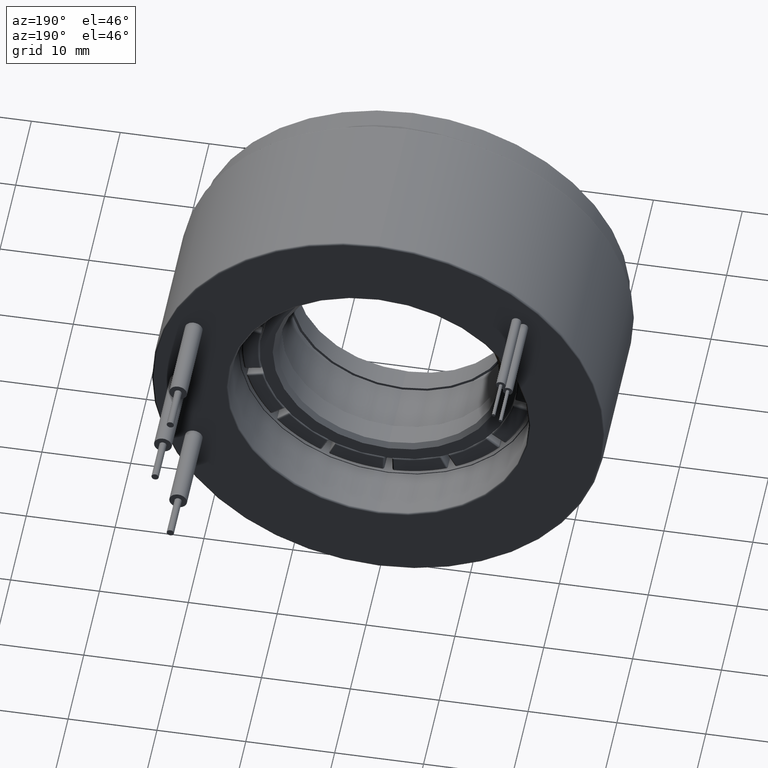
[diagram: clean part render]
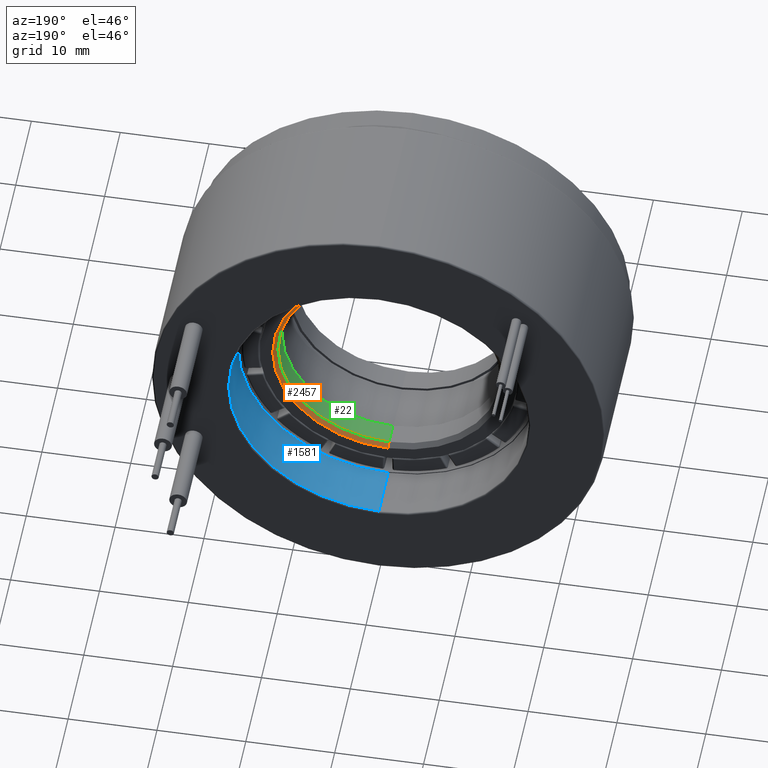
[diagram: same view with three faces highlighted in distinct colors, each labeled with its STEP entity id]
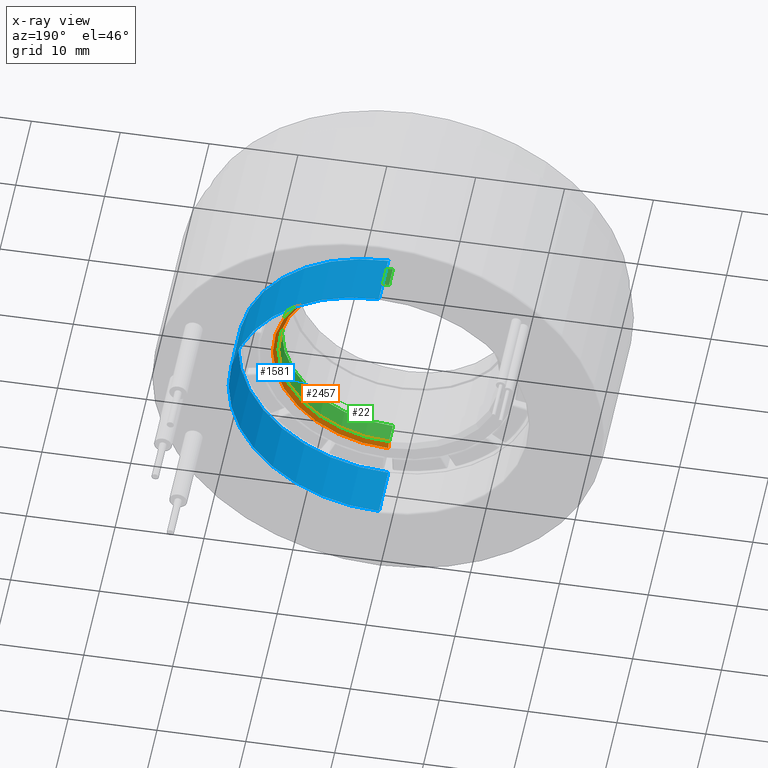
[diagram: x-ray of the same camera — body ghosted, the three highlighted faces saturated]
A machine part, auxiliary view with three faces highlighted in distinct colors.
The next image is the same camera in x-ray (body ghosted, the three faces saturated) — at least one of them is partly hidden behind the body in this view.
Their STEP definitions:

[orange] entity #2457 — the highlighted conical surface has half-angle 45 deg.
#29 = ORIENTED_EDGE ( 'NONE', *, *, #651, .T. ) ;
#142 = CARTESIAN_POINT ( 'NONE',  ( 1.592040838891559700E-015, 12.00000000000000000, -13.00000000000000500 ) ) ;
#201 = CARTESIAN_POINT ( 'NONE',  ( 1.592040838891559700E-015, 12.00000000000000000, -13.00000000000000500 ) ) ;
#327 = DIRECTION ( 'NONE',  ( 0.0000000000000000000, 0.0000000000000000000, 1.000000000000000000 ) ) ;
#352 = AXIS2_PLACEMENT_3D ( 'NONE', #1941, #1429, #2429 ) ;
#356 = CARTESIAN_POINT ( 'NONE',  ( 0.0000000000000000000, 12.00000000000000000, 0.0000000000000000000 ) ) ;
#443 = VECTOR ( 'NONE', #1012, 1000.000000000000000 ) ;
#478 = CARTESIAN_POINT ( 'NONE',  ( 1.530808498934191500E-015, 11.49999999999999100, 12.50000000000000000 ) ) ;
#591 = VECTOR ( 'NONE', #2965, 1000.000000000000000 ) ;
#651 = EDGE_CURVE ( 'NONE', #2077, #3161, #961, .T. ) ;
#680 = CARTESIAN_POINT ( 'NONE',  ( 0.0000000000000000000, 11.49999999999999100, -12.50000000000000000 ) ) ;
#797 = ORIENTED_EDGE ( 'NONE', *, *, #2662, .F. ) ;
#873 = DIRECTION ( 'NONE',  ( 0.0000000000000000000, 0.0000000000000000000, 1.000000000000000000 ) ) ;
#896 = ORIENTED_EDGE ( 'NONE', *, *, #1339, .F. ) ;
#936 = AXIS2_PLACEMENT_3D ( 'NONE', #356, #1612, #327 ) ;
#938 = LINE ( 'NONE', #1806, #443 ) ;
#961 = LINE ( 'NONE', #142, #591 ) ;
#1012 = DIRECTION ( 'NONE',  ( 0.0000000000000000000, 0.7071067811865512400, 0.7071067811865439100 ) ) ;
#1317 = EDGE_LOOP ( 'NONE', ( #797, #29, #1874, #896 ) ) ;
#1339 = EDGE_CURVE ( 'NONE', #1599, #1616, #938, .T. ) ;
#1418 = CIRCLE ( 'NONE', #352, 12.50000000000000000 ) ;
#1429 = DIRECTION ( 'NONE',  ( -0.0000000000000000000, 1.000000000000000000, -0.0000000000000000000 ) ) ;
#1599 = VERTEX_POINT ( 'NONE', #478 ) ;
#1612 = DIRECTION ( 'NONE',  ( -0.0000000000000000000, 1.000000000000000000, -0.0000000000000000000 ) ) ;
#1616 = VERTEX_POINT ( 'NONE', #2770 ) ;
#1700 = CIRCLE ( 'NONE', #3146, 13.00000000000000500 ) ;
#1806 = CARTESIAN_POINT ( 'NONE',  ( 0.0000000000000000000, 12.00000000000000000, 13.00000000000000500 ) ) ;
#1863 = CARTESIAN_POINT ( 'NONE',  ( 0.0000000000000000000, 12.00000000000000000, 0.0000000000000000000 ) ) ;
#1874 = ORIENTED_EDGE ( 'NONE', *, *, #2439, .F. ) ;
#1941 = CARTESIAN_POINT ( 'NONE',  ( 0.0000000000000000000, 11.49999999999999100, 0.0000000000000000000 ) ) ;
#2077 = VERTEX_POINT ( 'NONE', #680 ) ;
#2429 = DIRECTION ( 'NONE',  ( 0.0000000000000000000, 0.0000000000000000000, 1.000000000000000000 ) ) ;
#2439 = EDGE_CURVE ( 'NONE', #1616, #3161, #1700, .T. ) ;
#2457 = ADVANCED_FACE ( 'NONE', ( #2903 ), #2536, .F. ) ;
#2536 = CONICAL_SURFACE ( 'NONE', #936, 13.00000000000000500, 0.7853981633974431700 ) ;
#2662 = EDGE_CURVE ( 'NONE', #2077, #1599, #1418, .T. ) ;
#2770 = CARTESIAN_POINT ( 'NONE',  ( 0.0000000000000000000, 12.00000000000000000, 13.00000000000000500 ) ) ;
#2899 = DIRECTION ( 'NONE',  ( -0.0000000000000000000, -1.000000000000000000, -0.0000000000000000000 ) ) ;
#2903 = FACE_OUTER_BOUND ( 'NONE', #1317, .T. ) ;
#2965 = DIRECTION ( 'NONE',  ( 8.659560562354888500E-017, 0.7071067811865512400, -0.7071067811865439100 ) ) ;
#3146 = AXIS2_PLACEMENT_3D ( 'NONE', #1863, #2899, #873 ) ;
#3161 = VERTEX_POINT ( 'NONE', #201 ) ;

[blue] entity #1581 — the highlighted cylindrical surface (partial cylindrical patch) has radius 16.9 mm, axis along (-0, -1, -0).
#57 = ORIENTED_EDGE ( 'NONE', *, *, #2277, .F. ) ;
#195 = CARTESIAN_POINT ( 'NONE',  ( 0.0000000000000000000, 0.0000000000000000000, 0.0000000000000000000 ) ) ;
#292 = VERTEX_POINT ( 'NONE', #2547 ) ;
#305 = DIRECTION ( 'NONE',  ( -0.0000000000000000000, -1.000000000000000000, -0.0000000000000000000 ) ) ;
#313 = EDGE_LOOP ( 'NONE', ( #57, #858, #1189, #2787 ) ) ;
#321 = DIRECTION ( 'NONE',  ( 0.0000000000000000000, 0.0000000000000000000, -1.000000000000000000 ) ) ;
#407 = CARTESIAN_POINT ( 'NONE',  ( 0.0000000000000000000, 21.80000000000000100, -16.90000000000000600 ) ) ;
#453 = DIRECTION ( 'NONE',  ( -0.0000000000000000000, -1.000000000000000000, -0.0000000000000000000 ) ) ;
#640 = CARTESIAN_POINT ( 'NONE',  ( 2.069653090559027700E-015, 15.79999999999999900, 16.90000000000000600 ) ) ;
#732 = AXIS2_PLACEMENT_3D ( 'NONE', #3163, #2642, #1120 ) ;
#788 = EDGE_CURVE ( 'NONE', #2981, #1731, #2742, .T. ) ;
#858 = ORIENTED_EDGE ( 'NONE', *, *, #1031, .T. ) ;
#874 = LINE ( 'NONE', #1991, #1585 ) ;
#987 = EDGE_CURVE ( 'NONE', #1731, #1969, #2904, .T. ) ;
#1010 = DIRECTION ( 'NONE',  ( -0.0000000000000000000, -1.000000000000000000, -0.0000000000000000000 ) ) ;
#1031 = EDGE_CURVE ( 'NONE', #292, #2981, #2982, .T. ) ;
#1120 = DIRECTION ( 'NONE',  ( 0.0000000000000000000, 0.0000000000000000000, 1.000000000000000000 ) ) ;
#1170 = DIRECTION ( 'NONE',  ( -0.0000000000000000000, -1.000000000000000000, -0.0000000000000000000 ) ) ;
#1189 = ORIENTED_EDGE ( 'NONE', *, *, #788, .T. ) ;
#1308 = CARTESIAN_POINT ( 'NONE',  ( 0.0000000000000000000, 15.79999999999999900, 0.0000000000000000000 ) ) ;
#1539 = CARTESIAN_POINT ( 'NONE',  ( 0.0000000000000000000, 15.79999999999999900, -16.90000000000000600 ) ) ;
#1581 = ADVANCED_FACE ( 'NONE', ( #2233 ), #2512, .F. ) ;
#1585 = VECTOR ( 'NONE', #453, 1000.000000000000000 ) ;
#1646 = CARTESIAN_POINT ( 'NONE',  ( 0.0000000000000000000, 0.0000000000000000000, -16.90000000000000600 ) ) ;
#1731 = VERTEX_POINT ( 'NONE', #1539 ) ;
#1737 = DIRECTION ( 'NONE',  ( 0.0000000000000000000, 0.0000000000000000000, -1.000000000000000000 ) ) ;
#1969 = VERTEX_POINT ( 'NONE', #640 ) ;
#1991 = CARTESIAN_POINT ( 'NONE',  ( 2.069653090559027700E-015, 0.0000000000000000000, 16.90000000000000600 ) ) ;
#2233 = FACE_OUTER_BOUND ( 'NONE', #313, .T. ) ;
#2277 = EDGE_CURVE ( 'NONE', #292, #1969, #874, .T. ) ;
#2451 = VECTOR ( 'NONE', #1170, 1000.000000000000000 ) ;
#2512 = CYLINDRICAL_SURFACE ( 'NONE', #2609, 16.90000000000000600 ) ;
#2547 = CARTESIAN_POINT ( 'NONE',  ( 2.069653090559027700E-015, 21.80000000000000100, 16.90000000000000600 ) ) ;
#2609 = AXIS2_PLACEMENT_3D ( 'NONE', #195, #1010, #1737 ) ;
#2642 = DIRECTION ( 'NONE',  ( 0.0000000000000000000, 1.000000000000000000, 0.0000000000000000000 ) ) ;
#2742 = LINE ( 'NONE', #1646, #2451 ) ;
#2787 = ORIENTED_EDGE ( 'NONE', *, *, #987, .T. ) ;
#2904 = CIRCLE ( 'NONE', #2928, 16.90000000000000600 ) ;
#2928 = AXIS2_PLACEMENT_3D ( 'NONE', #1308, #305, #321 ) ;
#2981 = VERTEX_POINT ( 'NONE', #407 ) ;
#2982 = CIRCLE ( 'NONE', #732, 16.90000000000000600 ) ;
#3163 = CARTESIAN_POINT ( 'NONE',  ( 0.0000000000000000000, 21.80000000000000100, 0.0000000000000000000 ) ) ;

[green] entity #22 — the highlighted cylindrical surface (partial cylindrical patch) has radius 12.5 mm, axis along (0, -1, 0).
#22 = ADVANCED_FACE ( 'NONE', ( #1470 ), #800, .F. ) ;
#352 = AXIS2_PLACEMENT_3D ( 'NONE', #1941, #1429, #2429 ) ;
#478 = CARTESIAN_POINT ( 'NONE',  ( 1.530808498934191500E-015, 11.49999999999999100, 12.50000000000000000 ) ) ;
#680 = CARTESIAN_POINT ( 'NONE',  ( 0.0000000000000000000, 11.49999999999999100, -12.50000000000000000 ) ) ;
#711 = CARTESIAN_POINT ( 'NONE',  ( 0.0000000000000000000, 9.000000000000001800, -12.50000000000000000 ) ) ;
#800 = CYLINDRICAL_SURFACE ( 'NONE', #2204, 12.50000000000000000 ) ;
#807 = VECTOR ( 'NONE', #944, 1000.000000000000000 ) ;
#868 = ORIENTED_EDGE ( 'NONE', *, *, #2662, .T. ) ;
#886 = CIRCLE ( 'NONE', #3268, 12.50000000000000000 ) ;
#944 = DIRECTION ( 'NONE',  ( -0.0000000000000000000, -1.000000000000000000, -0.0000000000000000000 ) ) ;
#957 = DIRECTION ( 'NONE',  ( -0.0000000000000000000, -1.000000000000000000, -0.0000000000000000000 ) ) ;
#1142 = ORIENTED_EDGE ( 'NONE', *, *, #2024, .T. ) ;
#1342 = DIRECTION ( 'NONE',  ( -0.0000000000000000000, -1.000000000000000000, -0.0000000000000000000 ) ) ;
#1418 = CIRCLE ( 'NONE', #352, 12.50000000000000000 ) ;
#1429 = DIRECTION ( 'NONE',  ( -0.0000000000000000000, 1.000000000000000000, -0.0000000000000000000 ) ) ;
#1442 = CARTESIAN_POINT ( 'NONE',  ( 0.0000000000000000000, 0.0000000000000000000, 0.0000000000000000000 ) ) ;
#1452 = CARTESIAN_POINT ( 'NONE',  ( 1.530808498934191500E-015, 9.000000000000001800, 12.50000000000000000 ) ) ;
#1470 = FACE_OUTER_BOUND ( 'NONE', #1621, .T. ) ;
#1486 = VECTOR ( 'NONE', #1342, 1000.000000000000000 ) ;
#1599 = VERTEX_POINT ( 'NONE', #478 ) ;
#1621 = EDGE_LOOP ( 'NONE', ( #868, #2321, #1142, #1783 ) ) ;
#1783 = ORIENTED_EDGE ( 'NONE', *, *, #3045, .F. ) ;
#1804 = EDGE_CURVE ( 'NONE', #1599, #2056, #3002, .T. ) ;
#1941 = CARTESIAN_POINT ( 'NONE',  ( 0.0000000000000000000, 11.49999999999999100, 0.0000000000000000000 ) ) ;
#2024 = EDGE_CURVE ( 'NONE', #2056, #2279, #886, .T. ) ;
#2056 = VERTEX_POINT ( 'NONE', #1452 ) ;
#2077 = VERTEX_POINT ( 'NONE', #680 ) ;
#2204 = AXIS2_PLACEMENT_3D ( 'NONE', #1442, #957, #2449 ) ;
#2221 = CARTESIAN_POINT ( 'NONE',  ( 0.0000000000000000000, 9.000000000000001800, 0.0000000000000000000 ) ) ;
#2279 = VERTEX_POINT ( 'NONE', #711 ) ;
#2321 = ORIENTED_EDGE ( 'NONE', *, *, #1804, .T. ) ;
#2429 = DIRECTION ( 'NONE',  ( 0.0000000000000000000, 0.0000000000000000000, 1.000000000000000000 ) ) ;
#2449 = DIRECTION ( 'NONE',  ( 0.0000000000000000000, 0.0000000000000000000, -1.000000000000000000 ) ) ;
#2452 = DIRECTION ( 'NONE',  ( 0.0000000000000000000, 0.0000000000000000000, -1.000000000000000000 ) ) ;
#2601 = CARTESIAN_POINT ( 'NONE',  ( 1.530808498934191500E-015, 0.0000000000000000000, 12.50000000000000000 ) ) ;
#2662 = EDGE_CURVE ( 'NONE', #2077, #1599, #1418, .T. ) ;
#2848 = LINE ( 'NONE', #2966, #807 ) ;
#2955 = DIRECTION ( 'NONE',  ( -0.0000000000000000000, -1.000000000000000000, -0.0000000000000000000 ) ) ;
#2966 = CARTESIAN_POINT ( 'NONE',  ( 0.0000000000000000000, 0.0000000000000000000, -12.50000000000000000 ) ) ;
#3002 = LINE ( 'NONE', #2601, #1486 ) ;
#3045 = EDGE_CURVE ( 'NONE', #2077, #2279, #2848, .T. ) ;
#3268 = AXIS2_PLACEMENT_3D ( 'NONE', #2221, #2955, #2452 ) ;